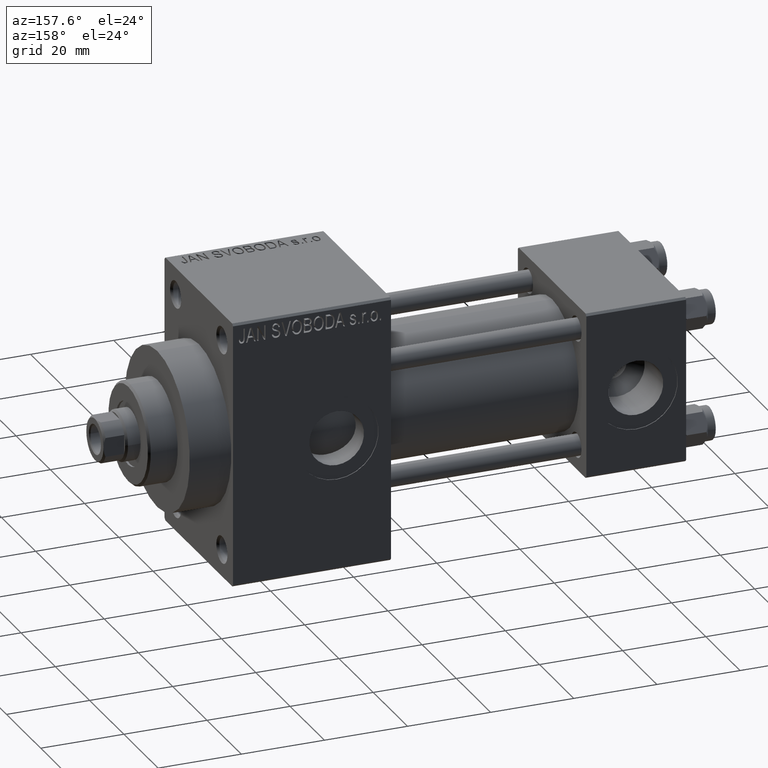
[diagram: clean part render]
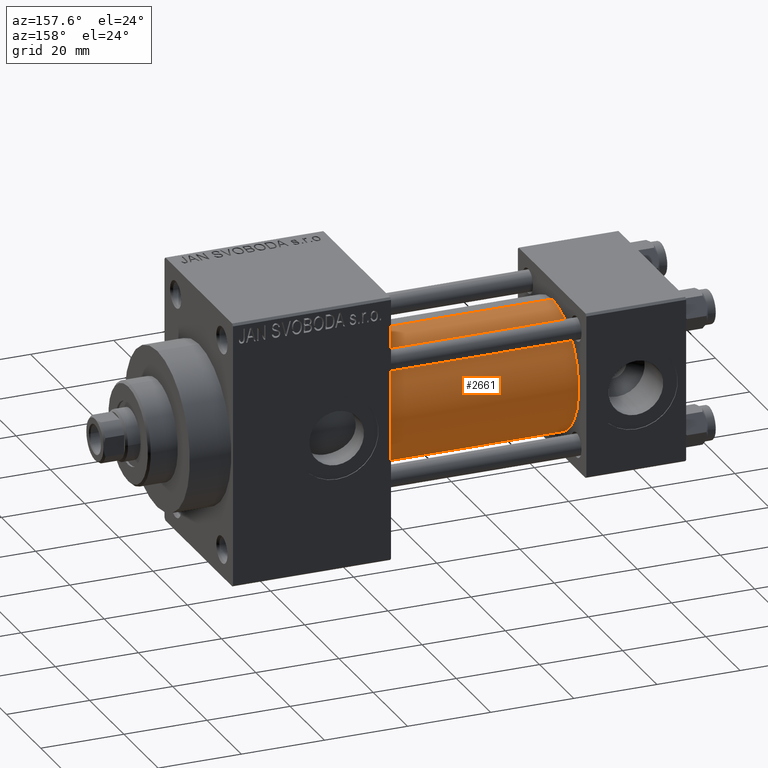
[diagram: same view with one face highlighted and labeled with its STEP entity id]
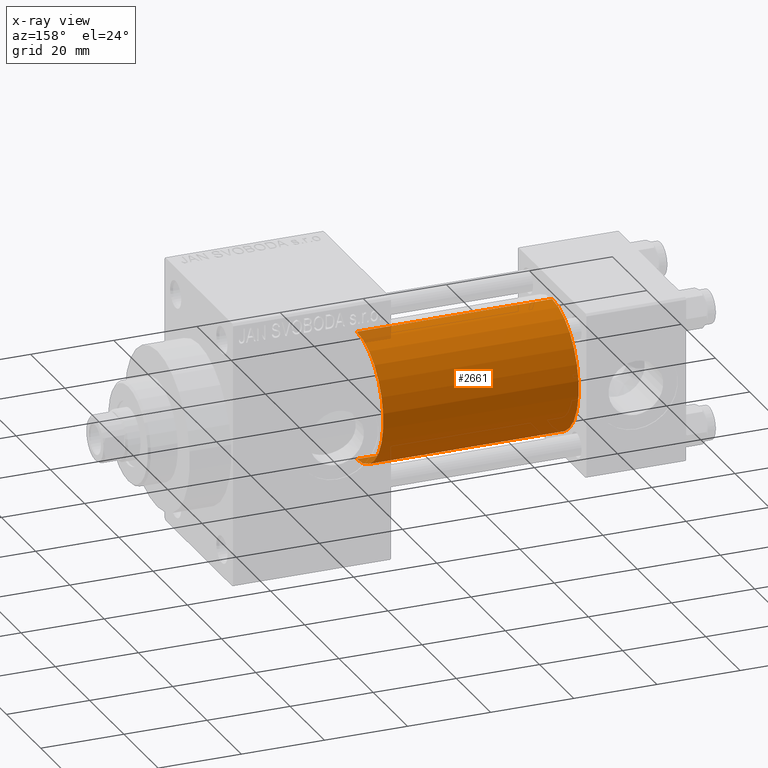
[diagram: x-ray of the same camera — body ghosted, the highlighted face saturated]
A machine part, auxiliary view. The second image highlights one B-rep face of the part: STEP entity #2661.
The next image is the same camera in x-ray: the body ghosted, the highlighted face saturated — about 2% of this face is hidden behind the body in this view.
In plain terms, the highlighted cylindrical surface (partial cylindrical patch) has radius 15.5 mm, axis along (-1, -0, -0).
Its self-contained STEP definition (entity closure, byte-faithful):
#573 = DIRECTION ( 'NONE',  ( -1.000000000000000000, -0.000000000000000000, -0.000000000000000000 ) ) ;
#1360 = ORIENTED_EDGE ( 'NONE', *, *, #20467, .F. ) ;
#2661 = ADVANCED_FACE ( 'NONE', ( #7711 ), #22744, .T. ) ;
#5476 = CARTESIAN_POINT ( 'NONE',  ( 71.00000000000001421, -2.602085213965210642E-15, 15.50000000000000000 ) ) ;
#7711 = FACE_OUTER_BOUND ( 'NONE', #12736, .T. ) ;
#7959 = CARTESIAN_POINT ( 'NONE',  ( 71.00000000000001421, -2.602085213965210642E-15, 0.000000000000000000 ) ) ;
#8179 = VECTOR ( 'NONE', #37708, 1000.000000000000000 ) ;
#8387 = ORIENTED_EDGE ( 'NONE', *, *, #26159, .F. ) ;
#8697 = AXIS2_PLACEMENT_3D ( 'NONE', #7959, #573, #22504 ) ;
#8756 = DIRECTION ( 'NONE',  ( 0.000000000000000000, 0.000000000000000000, 1.000000000000000000 ) ) ;
#10787 = DIRECTION ( 'NONE',  ( 1.000000000000000000, 0.000000000000000000, 0.000000000000000000 ) ) ;
#12736 = EDGE_LOOP ( 'NONE', ( #8387, #17934, #21122, #1360 ) ) ;
#13842 = LINE ( 'NONE', #5476, #26110 ) ;
#15000 = CARTESIAN_POINT ( 'NONE',  ( 71.00000000000001421, -7.038826752868131828E-16, -15.50000000000000000 ) ) ;
#16157 = CARTESIAN_POINT ( 'NONE',  ( 24.00000000000000000, -2.602085213965210642E-15, 0.000000000000000000 ) ) ;
#17235 = CARTESIAN_POINT ( 'NONE',  ( 71.00000000000001421, -7.038826752868131828E-16, -15.50000000000000000 ) ) ;
#17934 = ORIENTED_EDGE ( 'NONE', *, *, #27985, .T. ) ;
#18343 = CIRCLE ( 'NONE', #24631, 15.50000000000000000 ) ;
#18953 = LINE ( 'NONE', #15000, #8179 ) ;
#20467 = EDGE_CURVE ( 'NONE', #38233, #26187, #13842, .T. ) ;
#21082 = VERTEX_POINT ( 'NONE', #30282 ) ;
#21122 = ORIENTED_EDGE ( 'NONE', *, *, #30437, .T. ) ;
#22504 = DIRECTION ( 'NONE',  ( 0.000000000000000000, 0.000000000000000000, 1.000000000000000000 ) ) ;
#22744 = CYLINDRICAL_SURFACE ( 'NONE', #8697, 15.50000000000000000 ) ;
#24504 = DIRECTION ( 'NONE',  ( 1.000000000000000000, 0.000000000000000000, 0.000000000000000000 ) ) ;
#24631 = AXIS2_PLACEMENT_3D ( 'NONE', #29291, #10787, #28798 ) ;
#26110 = VECTOR ( 'NONE', #28881, 1000.000000000000000 ) ;
#26159 = EDGE_CURVE ( 'NONE', #31061, #38233, #18343, .T. ) ;
#26187 = VERTEX_POINT ( 'NONE', #47558 ) ;
#27985 = EDGE_CURVE ( 'NONE', #31061, #21082, #18953, .T. ) ;
#28798 = DIRECTION ( 'NONE',  ( 0.000000000000000000, 0.000000000000000000, -1.000000000000000000 ) ) ;
#28881 = DIRECTION ( 'NONE',  ( -1.000000000000000000, -0.000000000000000000, -0.000000000000000000 ) ) ;
#29291 = CARTESIAN_POINT ( 'NONE',  ( 71.00000000000001421, -2.602085213965210642E-15, 0.000000000000000000 ) ) ;
#30282 = CARTESIAN_POINT ( 'NONE',  ( 24.00000000000000000, -7.038826752868131828E-16, -15.50000000000000000 ) ) ;
#30437 = EDGE_CURVE ( 'NONE', #21082, #26187, #42161, .T. ) ;
#30821 = CARTESIAN_POINT ( 'NONE',  ( 71.00000000000001421, -2.602085213965210642E-15, 15.50000000000000000 ) ) ;
#31061 = VERTEX_POINT ( 'NONE', #17235 ) ;
#37708 = DIRECTION ( 'NONE',  ( -1.000000000000000000, -0.000000000000000000, -0.000000000000000000 ) ) ;
#38233 = VERTEX_POINT ( 'NONE', #30821 ) ;
#42161 = CIRCLE ( 'NONE', #45296, 15.50000000000000000 ) ;
#45296 = AXIS2_PLACEMENT_3D ( 'NONE', #16157, #24504, #8756 ) ;
#47558 = CARTESIAN_POINT ( 'NONE',  ( 24.00000000000000000, -2.602085213965210642E-15, 15.50000000000000000 ) ) ;